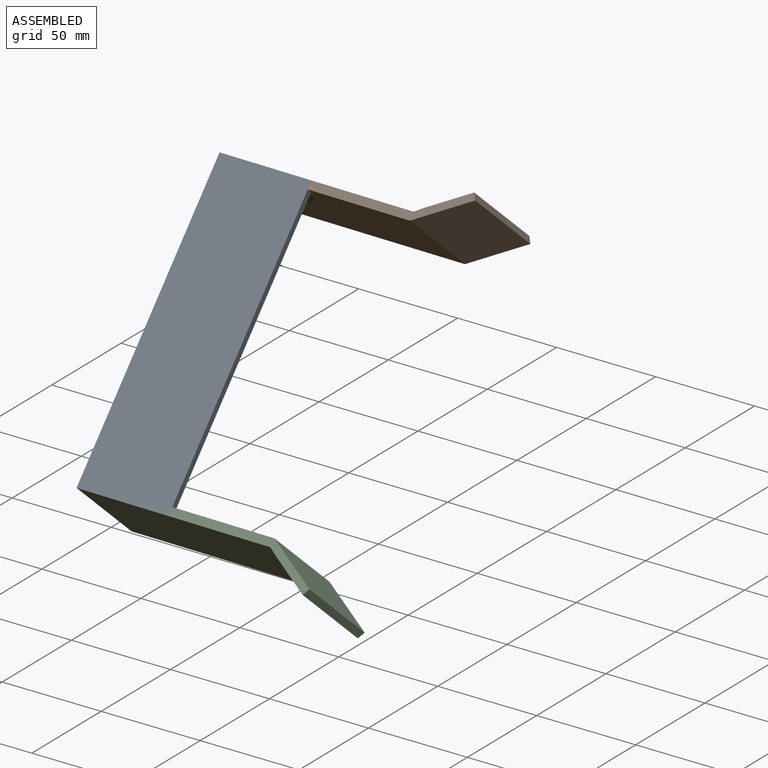
[diagram: assembled view]
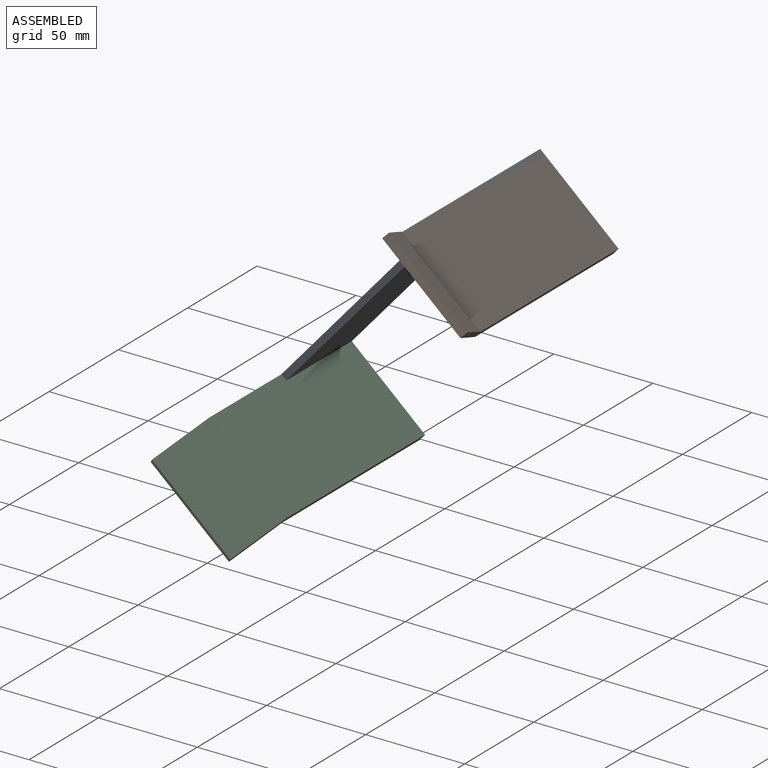
[diagram: assembled view, second angle]
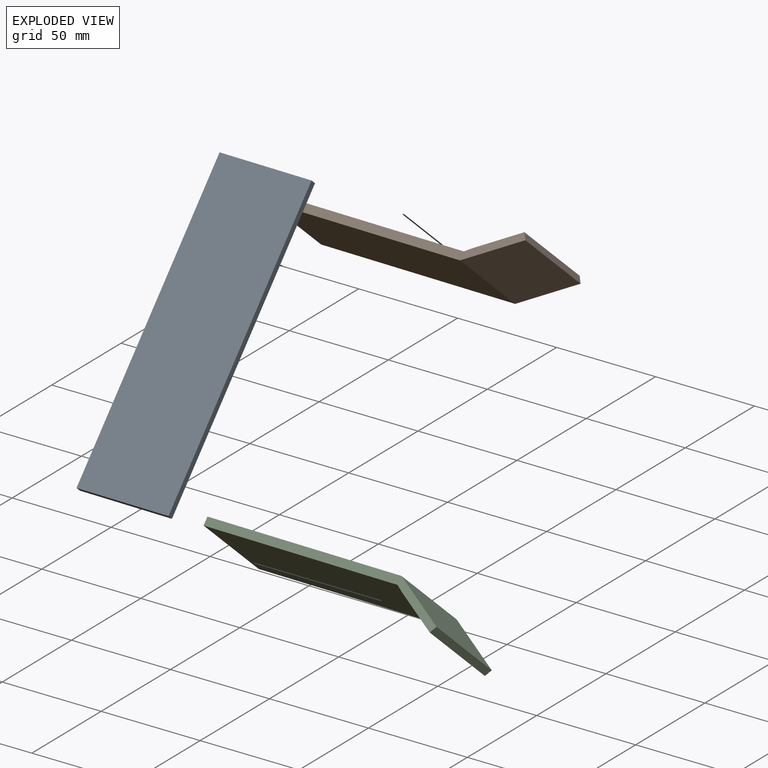
[diagram: exploded view]
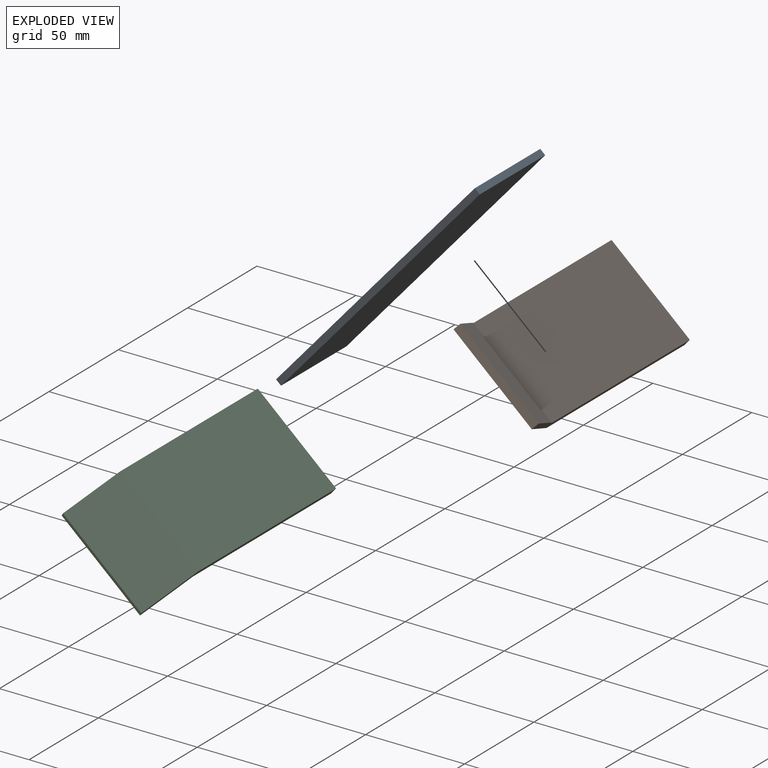
[diagram: exploded view, second angle]
ASSEMBLY  parts=3 mates=4
PART A: 6 faces, bbox 153.2x46.7x3.3 mm
  f0: plane 153.2x3.33mm, normal (0,1,0), area 510.6mm2, adj f1,f3,f4,f5
  f1: plane 46.72x3.33mm, normal (-1,0,0), area 155.7mm2, adj f0,f2,f4,f5
  f2: plane 153.2x3.33mm, normal (0,-1,0), area 510.6mm2, adj f1,f3,f4,f5
  f3: plane 46.72x3.33mm, normal (1,0,0), area 155.7mm2, adj f0,f2,f4,f5
  f4: plane 153.2x46.72mm, normal (0,0,1), area 7157mm2, adj f0,f1,f2,f3
  f5: plane 153.2x46.72mm, normal (0,0,-1), area 7157mm2, adj f0,f1,f2,f3
PART B: 9 faces, bbox 124.1x19.4x52.8 mm
  f0: plane 98.52x52.85mm, normal (0,-1,0), area 5206.7mm2, adj f1,f6,f7,f8
  f1: plane 52.85x4.11mm, normal (1,0,0), area 217.2mm2, adj f0,f2,f7,f8
  f2: plane 98.53x52.85mm, normal (0,1,0), area 5207.2mm2, adj f1,f3,f7,f8
  f3: plane 52.85x25.53mm, normal (-0.54,0.84,0), area 1598.9mm2, adj f2,f4,f7,f8
  f4: plane 52.85x3.13mm, normal (-0.84,-0.54,0), area 196.1mm2, adj f3,f5,f7,f8
  f5: plane 52.85x20.37mm, normal (0.54,-0.84,0), area 1275.5mm2, adj f4,f6,f7,f8
  f6: plane 52.85x3.18mm, normal (0.59,-0.81,0), area 207.6mm2, adj f0,f5,f7,f8
  f7: plane 124.06x19.36mm, normal (0,0,1), area 512.4mm2, adj f0,f1,f2,f3,f4,f5,f6
  f8: plane 124.06x19.36mm, normal (0,0,-1), area 512.4mm2, adj f0,f1,f2,f3,f4,f5,f6
PART C: same geometry as B
PLACE A rot(axis=(0.38,-0.38,0.84),99.3deg) t=(-20.73,35.77,-48.22)mm fixed
PLACE B rot(axis=(0,-0.41,0.91),179.5deg) t=(42.13,171.05,30.55)mm
PLACE C rot(axis=(0,-0.91,-0.41),179.9deg) t=(40.75,35.52,-43.22)mm
MATE planar C.f1 <-> A.f0  axis (-1,0.01,0) through (-20.57,75.62,-77.89)mm
MATE planar B.f7 <-> A.f4  axis (0,-0.75,0.66) through (-19.43,134.6,68.88)mm
MATE planar B.f1 <-> A.f0  axis (-1,0.01,0) through (-19.43,134.6,68.88)mm
MATE planar C.f8 <-> A.f4  axis (0,-0.75,0.66) through (-20.74,33.27,-46.01)mm
